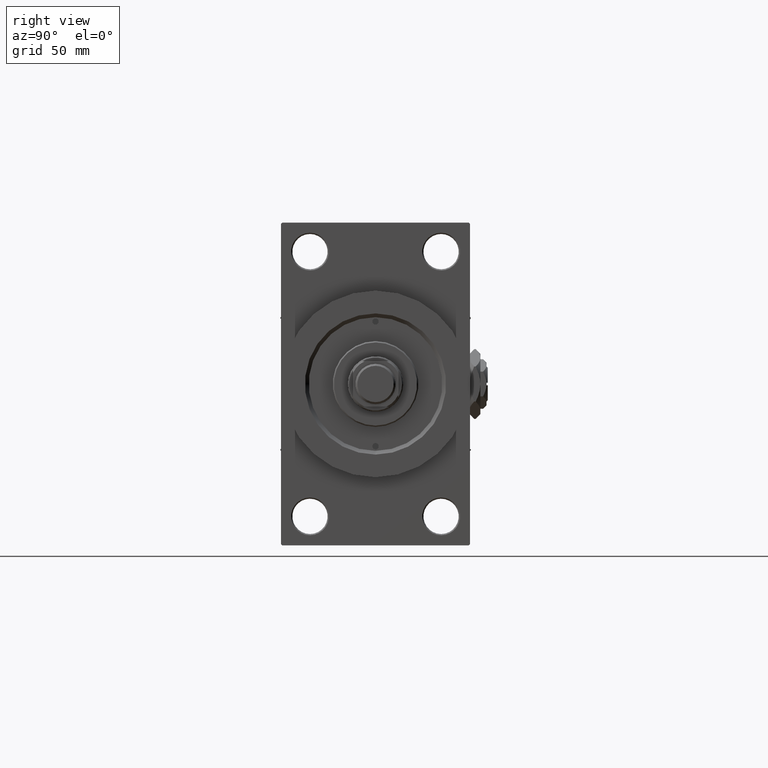
[diagram: clean part render]
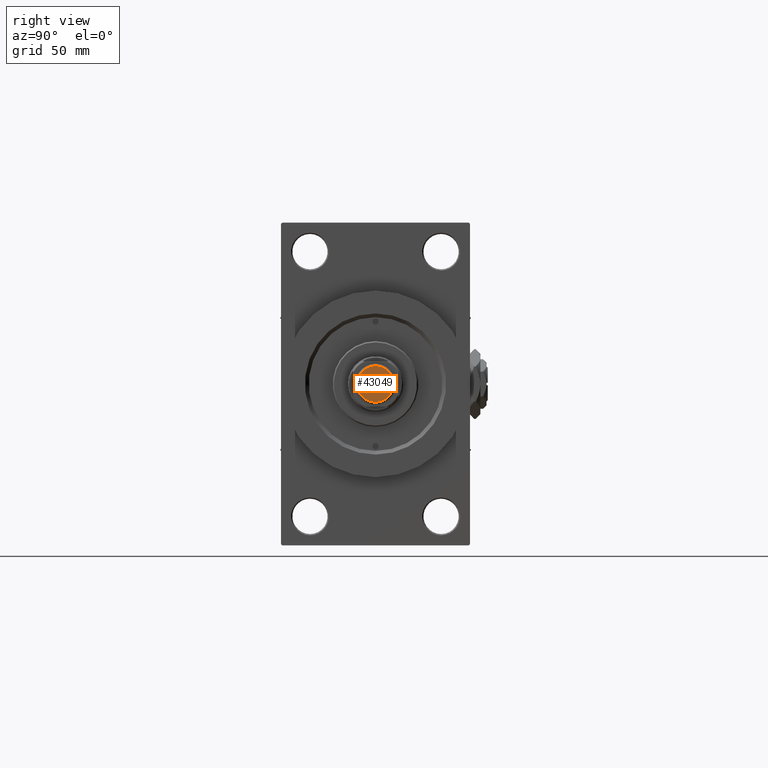
[diagram: same view with one face highlighted and labeled with its STEP entity id]
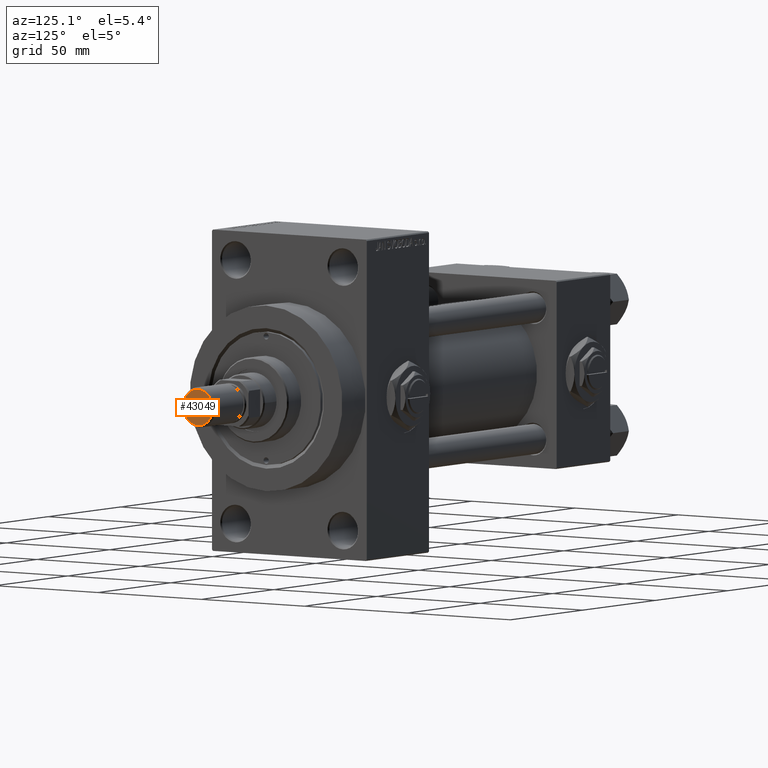
[diagram: same view with one face highlighted and labeled with its STEP entity id]
A machine part, right view. The second image highlights one B-rep face of the part: STEP entity #43049.
A second angle (auxiliary view) of the same face is appended — the face is thin or edge-on in the first view.
In plain terms, the highlighted planar face has unit normal (-1, 0, 0).
Its self-contained STEP definition (entity closure, byte-faithful):
#578 = AXIS2_PLACEMENT_3D ( 'NONE', #13397, #45001, #2777 ) ;
#649 = CIRCLE ( 'NONE', #32089, 7.199999999999987743 ) ;
#837 = ORIENTED_EDGE ( 'NONE', *, *, #18138, .T. ) ;
#1131 = CARTESIAN_POINT ( 'NONE',  ( 0.000000000000000000, 0.000000000000000000, 0.000000000000000000 ) ) ;
#1381 = DIRECTION ( 'NONE',  ( 1.000000000000000000, 0.000000000000000000, 0.000000000000000000 ) ) ;
#2777 = DIRECTION ( 'NONE',  ( 1.000000000000000000, 0.000000000000000000, 0.000000000000000000 ) ) ;
#10431 = EDGE_LOOP ( 'NONE', ( #837, #28529 ) ) ;
#10958 = FACE_OUTER_BOUND ( 'NONE', #10431, .T. ) ;
#13397 = CARTESIAN_POINT ( 'NONE',  ( 0.000000000000000000, 0.000000000000000000, 0.000000000000000000 ) ) ;
#17924 = AXIS2_PLACEMENT_3D ( 'NONE', #45841, #45346, #42033 ) ;
#18138 = EDGE_CURVE ( 'NONE', #30296, #42685, #41728, .T. ) ;
#19900 = CARTESIAN_POINT ( 'NONE',  ( -7.199999999999987743, 9.307315673519877571E-16, 0.000000000000000000 ) ) ;
#20060 = DIRECTION ( 'NONE',  ( -0.000000000000000000, -0.000000000000000000, -1.000000000000000000 ) ) ;
#20238 = EDGE_CURVE ( 'NONE', #42685, #30296, #649, .T. ) ;
#28529 = ORIENTED_EDGE ( 'NONE', *, *, #20238, .T. ) ;
#30296 = VERTEX_POINT ( 'NONE', #46767 ) ;
#32089 = AXIS2_PLACEMENT_3D ( 'NONE', #1131, #20060, #1381 ) ;
#38495 = PLANE ( 'NONE',  #17924 ) ;
#41728 = CIRCLE ( 'NONE', #578, 7.199999999999987743 ) ;
#42033 = DIRECTION ( 'NONE',  ( 1.000000000000000000, 0.000000000000000000, -0.000000000000000000 ) ) ;
#42685 = VERTEX_POINT ( 'NONE', #19900 ) ;
#43049 = ADVANCED_FACE ( 'NONE', ( #10958 ), #38495, .F. ) ;
#45001 = DIRECTION ( 'NONE',  ( -0.000000000000000000, -0.000000000000000000, -1.000000000000000000 ) ) ;
#45346 = DIRECTION ( 'NONE',  ( 0.000000000000000000, 0.000000000000000000, 1.000000000000000000 ) ) ;
#45841 = CARTESIAN_POINT ( 'NONE',  ( 0.000000000000000000, 0.000000000000000000, 0.000000000000000000 ) ) ;
#46767 = CARTESIAN_POINT ( 'NONE',  ( 7.199999999999987743, 0.000000000000000000, 0.000000000000000000 ) ) ;